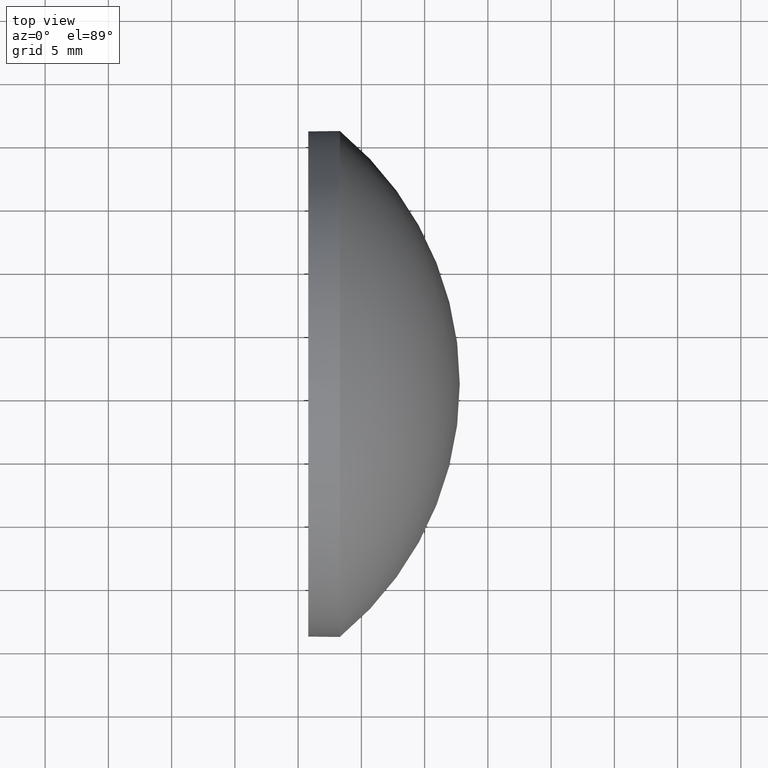
[diagram: clean part render]
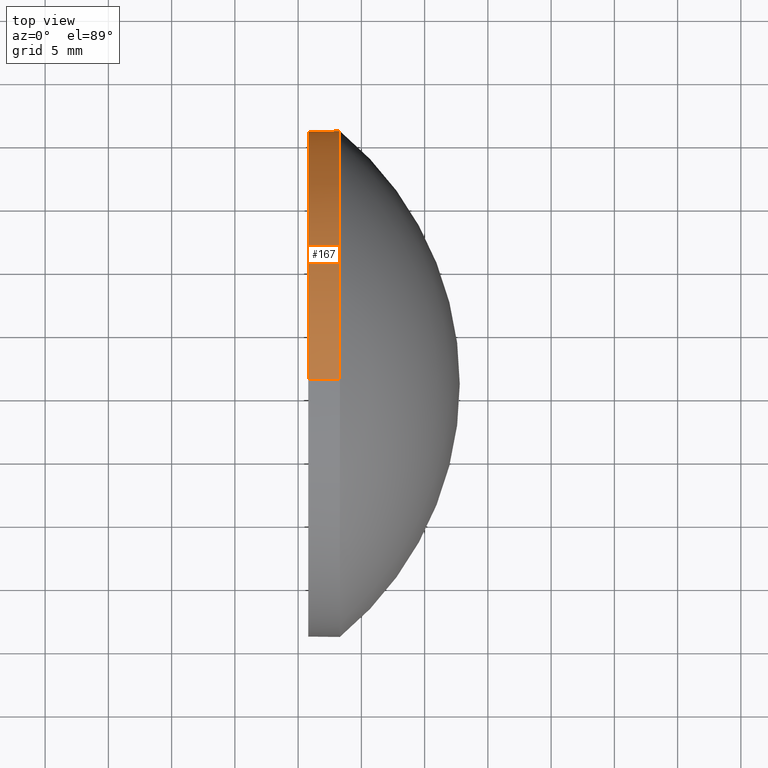
[diagram: same view with one face highlighted and labeled with its STEP entity id]
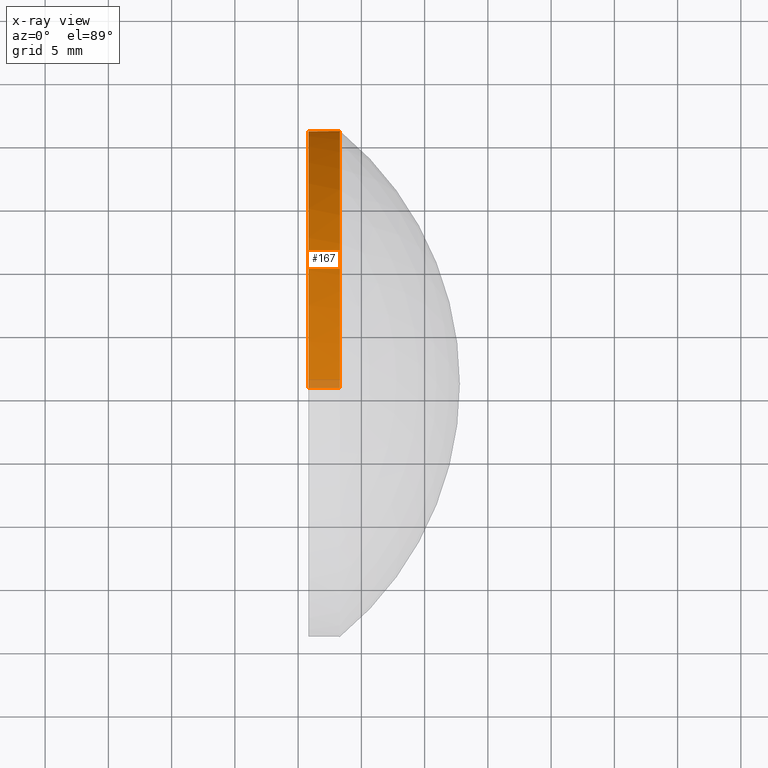
[diagram: x-ray of the same camera — body ghosted, the highlighted face saturated]
A machine part, top view. The second image highlights one B-rep face of the part: STEP entity #167.
The next image is the same camera in x-ray: the body ghosted, the highlighted face saturated — about 3% of this face is hidden behind the body in this view.
In plain terms, the highlighted cylindrical surface (partial cylindrical patch) has radius 20 mm, axis along (-1, -0, -0).
Its self-contained STEP definition (entity closure, byte-faithful):
#5 = DIRECTION ( 'NONE',  ( 0.0000000000000000000, 0.0000000000000000000, 1.000000000000000000 ) ) ;
#6 = DIRECTION ( 'NONE',  ( -1.000000000000000000, -0.0000000000000000000, -0.0000000000000000000 ) ) ;
#7 = ORIENTED_EDGE ( 'NONE', *, *, #97, .T. ) ;
#8 = LINE ( 'NONE', #29, #178 ) ;
#10 = DIRECTION ( 'NONE',  ( -1.000000000000000000, -0.0000000000000000000, -0.0000000000000000000 ) ) ;
#18 = DIRECTION ( 'NONE',  ( 0.0000000000000000000, 0.0000000000000000000, 1.000000000000000000 ) ) ;
#20 = VECTOR ( 'NONE', #6, 1000.000000000000000 ) ;
#29 = CARTESIAN_POINT ( 'NONE',  ( 436.8327783161237200, 15.96846071978552600, 19.99999999999999600 ) ) ;
#33 = FACE_OUTER_BOUND ( 'NONE', #96, .T. ) ;
#34 = DIRECTION ( 'NONE',  ( 0.0000000000000000000, 0.0000000000000000000, 1.000000000000000000 ) ) ;
#36 = CARTESIAN_POINT ( 'NONE',  ( 440.7977319271096800, 15.96846071978552600, 19.99999999999999600 ) ) ;
#37 = AXIS2_PLACEMENT_3D ( 'NONE', #176, #119, #5 ) ;
#41 = AXIS2_PLACEMENT_3D ( 'NONE', #77, #10, #166 ) ;
#45 = CARTESIAN_POINT ( 'NONE',  ( 440.7977319271096800, 15.96846071978552600, 0.0000000000000000000 ) ) ;
#46 = CARTESIAN_POINT ( 'NONE',  ( 443.2977319271096800, 15.96846071978552600, 19.99999999999999600 ) ) ;
#48 = CARTESIAN_POINT ( 'NONE',  ( 436.8327783161237200, 15.96846071978552900, -19.99999999999999600 ) ) ;
#49 = AXIS2_PLACEMENT_3D ( 'NONE', #45, #62, #18 ) ;
#52 = VERTEX_POINT ( 'NONE', #46 ) ;
#59 = CIRCLE ( 'NONE', #37, 19.99999999999999600 ) ;
#62 = DIRECTION ( 'NONE',  ( -1.000000000000000000, -0.0000000000000000000, -0.0000000000000000000 ) ) ;
#71 = VERTEX_POINT ( 'NONE', #131 ) ;
#74 = CARTESIAN_POINT ( 'NONE',  ( 443.2977319271096800, 35.96846071978551900, 0.0000000000000000000 ) ) ;
#77 = CARTESIAN_POINT ( 'NONE',  ( 443.2977319271096800, 15.96846071978552600, 0.0000000000000000000 ) ) ;
#83 = EDGE_CURVE ( 'NONE', #144, #151, #164, .T. ) ;
#84 = DIRECTION ( 'NONE',  ( -1.000000000000000000, -0.0000000000000000000, -0.0000000000000000000 ) ) ;
#89 = VERTEX_POINT ( 'NONE', #74 ) ;
#94 = EDGE_CURVE ( 'NONE', #52, #89, #59, .T. ) ;
#96 = EDGE_LOOP ( 'NONE', ( #165, #7, #110, #132, #183 ) ) ;
#97 = EDGE_CURVE ( 'NONE', #71, #151, #138, .T. ) ;
#102 = AXIS2_PLACEMENT_3D ( 'NONE', #109, #84, #34 ) ;
#109 = CARTESIAN_POINT ( 'NONE',  ( 436.8327783161237200, 15.96846071978552600, 0.0000000000000000000 ) ) ;
#110 = ORIENTED_EDGE ( 'NONE', *, *, #83, .F. ) ;
#116 = EDGE_CURVE ( 'NONE', #52, #144, #8, .T. ) ;
#119 = DIRECTION ( 'NONE',  ( -1.000000000000000000, -0.0000000000000000000, -0.0000000000000000000 ) ) ;
#131 = CARTESIAN_POINT ( 'NONE',  ( 443.2977319271096800, 15.96846071978552900, -19.99999999999999600 ) ) ;
#132 = ORIENTED_EDGE ( 'NONE', *, *, #116, .F. ) ;
#138 = LINE ( 'NONE', #48, #20 ) ;
#144 = VERTEX_POINT ( 'NONE', #36 ) ;
#150 = EDGE_CURVE ( 'NONE', #89, #71, #184, .T. ) ;
#151 = VERTEX_POINT ( 'NONE', #181 ) ;
#159 = CYLINDRICAL_SURFACE ( 'NONE', #102, 19.99999999999999600 ) ;
#161 = DIRECTION ( 'NONE',  ( -1.000000000000000000, -0.0000000000000000000, -0.0000000000000000000 ) ) ;
#164 = CIRCLE ( 'NONE', #49, 19.99999999999999600 ) ;
#165 = ORIENTED_EDGE ( 'NONE', *, *, #150, .T. ) ;
#166 = DIRECTION ( 'NONE',  ( 0.0000000000000000000, 0.0000000000000000000, 1.000000000000000000 ) ) ;
#167 = ADVANCED_FACE ( 'NONE', ( #33 ), #159, .T. ) ;
#176 = CARTESIAN_POINT ( 'NONE',  ( 443.2977319271096800, 15.96846071978552600, 0.0000000000000000000 ) ) ;
#178 = VECTOR ( 'NONE', #161, 1000.000000000000000 ) ;
#181 = CARTESIAN_POINT ( 'NONE',  ( 440.7977319271096800, 15.96846071978552900, -19.99999999999999600 ) ) ;
#183 = ORIENTED_EDGE ( 'NONE', *, *, #94, .T. ) ;
#184 = CIRCLE ( 'NONE', #41, 19.99999999999999600 ) ;